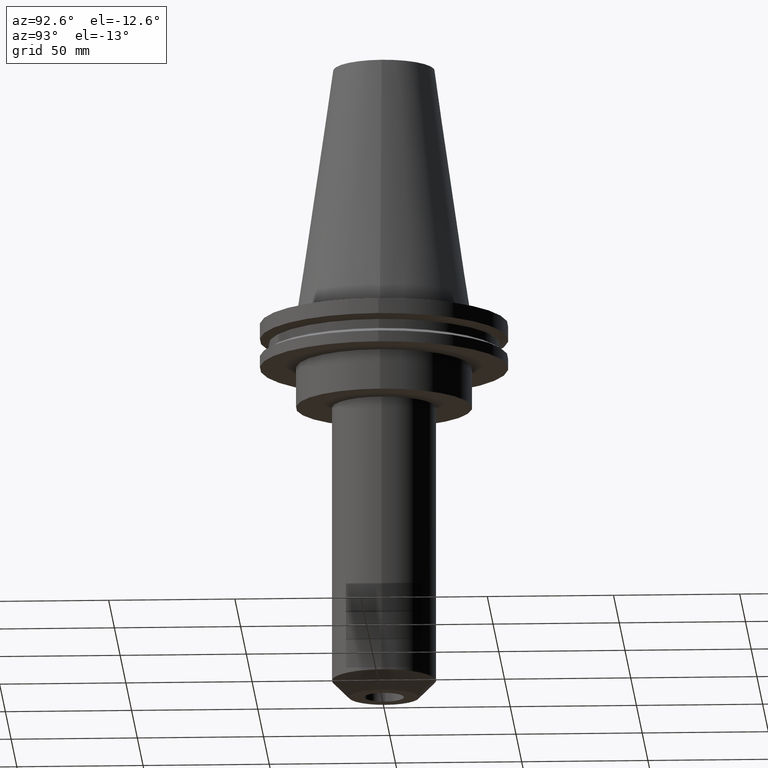
[diagram: clean part render]
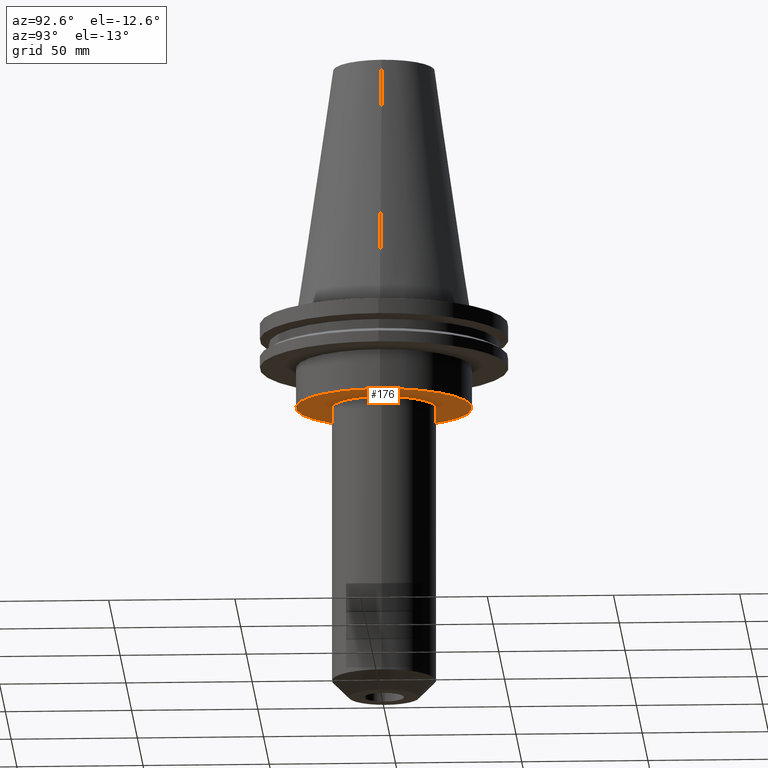
[diagram: same view with one face highlighted and labeled with its STEP entity id]
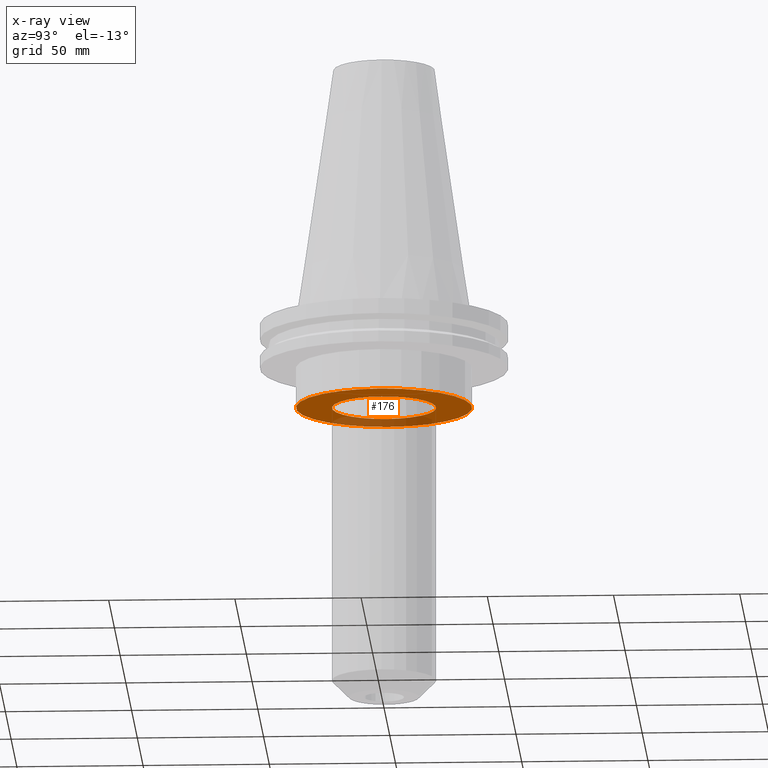
[diagram: x-ray of the same camera — body ghosted, the highlighted face saturated]
A machine part, auxiliary view. The second image highlights one B-rep face of the part: STEP entity #176.
The next image is the same camera in x-ray: the body ghosted, the highlighted face saturated — about 23% of this face is hidden behind the body in this view.
In plain terms, the highlighted planar face has unit normal (0, -0, 1).
Its self-contained STEP definition (entity closure, byte-faithful):
#2 = DIRECTION ( 'NONE',  ( 1.000000000000000000, 0.000000000000000000, 0.000000000000000000 ) ) ;
#27 = ORIENTED_EDGE ( 'NONE', *, *, #677, .F. ) ;
#34 = EDGE_LOOP ( 'NONE', ( #27, #429 ) ) ;
#47 = DIRECTION ( 'NONE',  ( -0.000000000000000000, -0.000000000000000000, 1.000000000000000000 ) ) ;
#66 = DIRECTION ( 'NONE',  ( 0.000000000000000000, -0.000000000000000000, 1.000000000000000000 ) ) ;
#70 = FACE_OUTER_BOUND ( 'NONE', #34, .T. ) ;
#83 = DIRECTION ( 'NONE',  ( 1.000000000000000000, 0.000000000000000000, 0.000000000000000000 ) ) ;
#137 = DIRECTION ( 'NONE',  ( 0.000000000000000000, 0.000000000000000000, -1.000000000000000000 ) ) ;
#147 = ORIENTED_EDGE ( 'NONE', *, *, #732, .F. ) ;
#159 = AXIS2_PLACEMENT_3D ( 'NONE', #729, #137, #411 ) ;
#176 = ADVANCED_FACE ( 'NONE', ( #70, #725 ), #657, .F. ) ;
#189 = AXIS2_PLACEMENT_3D ( 'NONE', #199, #735, #203 ) ;
#196 = VERTEX_POINT ( 'NONE', #800 ) ;
#199 = CARTESIAN_POINT ( 'NONE',  ( 0.000000000000000000, 0.000000000000000000, -35.04999999999999716 ) ) ;
#203 = DIRECTION ( 'NONE',  ( 1.000000000000000000, 0.000000000000000000, 0.000000000000000000 ) ) ;
#247 = EDGE_LOOP ( 'NONE', ( #147, #576 ) ) ;
#271 = CARTESIAN_POINT ( 'NONE',  ( 0.000000000000000000, 0.000000000000000000, -35.04999999999999716 ) ) ;
#358 = AXIS2_PLACEMENT_3D ( 'NONE', #271, #469, #83 ) ;
#377 = CARTESIAN_POINT ( 'NONE',  ( 0.000000000000000000, 0.000000000000000000, -35.04999999999999716 ) ) ;
#411 = DIRECTION ( 'NONE',  ( 1.000000000000000000, 0.000000000000000000, 0.000000000000000000 ) ) ;
#429 = ORIENTED_EDGE ( 'NONE', *, *, #481, .F. ) ;
#444 = VERTEX_POINT ( 'NONE', #552 ) ;
#456 = CIRCLE ( 'NONE', #189, 34.92499999999999716 ) ;
#461 = AXIS2_PLACEMENT_3D ( 'NONE', #601, #66, #2 ) ;
#469 = DIRECTION ( 'NONE',  ( 0.000000000000000000, 0.000000000000000000, -1.000000000000000000 ) ) ;
#481 = EDGE_CURVE ( 'NONE', #826, #196, #659, .T. ) ;
#529 = CIRCLE ( 'NONE', #358, 20.64000000000000057 ) ;
#552 = CARTESIAN_POINT ( 'NONE',  ( 20.64000000000000057, 0.000000000000000000, -35.04999999999999716 ) ) ;
#576 = ORIENTED_EDGE ( 'NONE', *, *, #748, .F. ) ;
#601 = CARTESIAN_POINT ( 'NONE',  ( 0.000000000000000000, 34.92499999999999716, -35.04999999999999716 ) ) ;
#602 = CARTESIAN_POINT ( 'NONE',  ( -20.64000000000000057, 2.527670993440137339E-15, -35.04999999999999716 ) ) ;
#657 = PLANE ( 'NONE',  #461 ) ;
#659 = CIRCLE ( 'NONE', #714, 34.92499999999999716 ) ;
#677 = EDGE_CURVE ( 'NONE', #196, #826, #456, .T. ) ;
#714 = AXIS2_PLACEMENT_3D ( 'NONE', #377, #47, #780 ) ;
#725 = FACE_BOUND ( 'NONE', #247, .T. ) ;
#729 = CARTESIAN_POINT ( 'NONE',  ( 0.000000000000000000, 0.000000000000000000, -35.04999999999999716 ) ) ;
#732 = EDGE_CURVE ( 'NONE', #444, #759, #529, .T. ) ;
#735 = DIRECTION ( 'NONE',  ( -0.000000000000000000, -0.000000000000000000, 1.000000000000000000 ) ) ;
#748 = EDGE_CURVE ( 'NONE', #759, #444, #790, .T. ) ;
#753 = CARTESIAN_POINT ( 'NONE',  ( -34.92499999999999716, 4.277078946022130887E-15, -35.04999999999999716 ) ) ;
#759 = VERTEX_POINT ( 'NONE', #602 ) ;
#780 = DIRECTION ( 'NONE',  ( 1.000000000000000000, 0.000000000000000000, 0.000000000000000000 ) ) ;
#790 = CIRCLE ( 'NONE', #159, 20.64000000000000057 ) ;
#800 = CARTESIAN_POINT ( 'NONE',  ( 34.92499999999999716, 0.000000000000000000, -35.04999999999999716 ) ) ;
#826 = VERTEX_POINT ( 'NONE', #753 ) ;